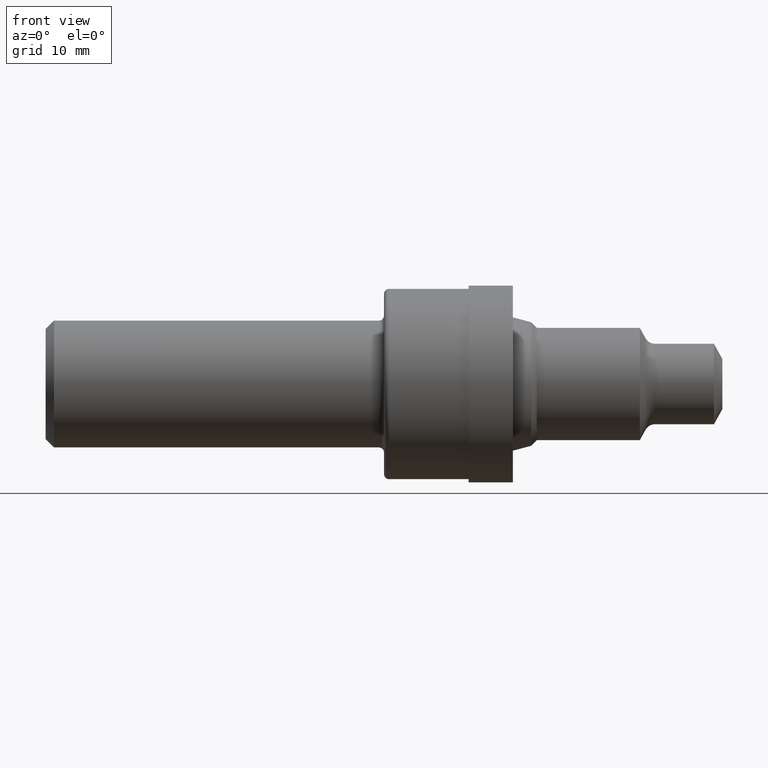
[diagram: clean part render]
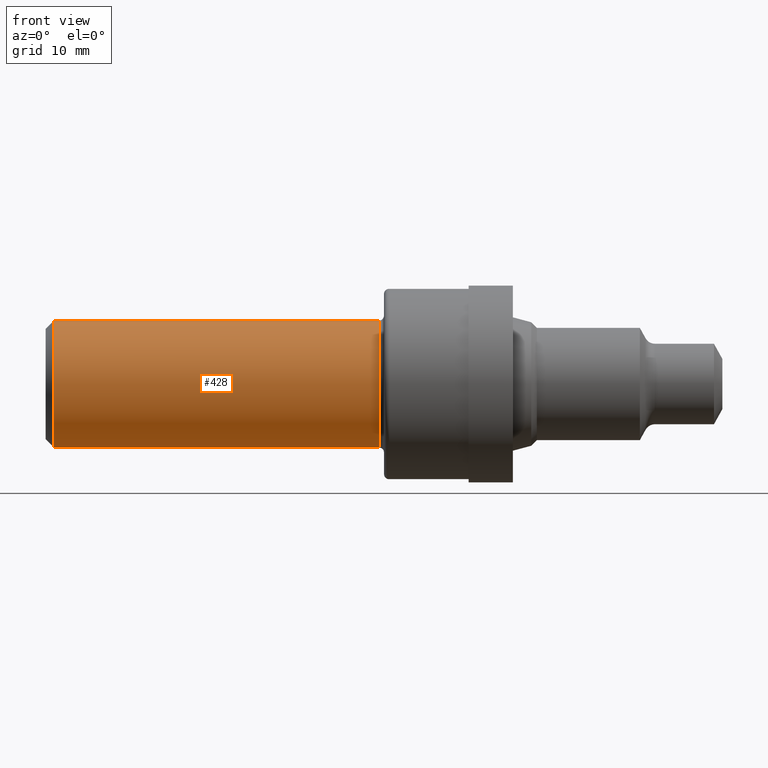
[diagram: same view with one face highlighted and labeled with its STEP entity id]
A machine part, front view. The second image highlights one B-rep face of the part: STEP entity #428.
In plain terms, the highlighted cylindrical surface (partial cylindrical patch) has radius 9.5212 mm, axis along (-1, -0, -0).
Its self-contained STEP definition (entity closure, byte-faithful):
#5 = ORIENTED_EDGE ( 'NONE', *, *, #350, .T. ) ;
#31 = EDGE_CURVE ( 'NONE', #664, #215, #213, .T. ) ;
#44 = DIRECTION ( 'NONE',  ( -1.000000000000000000, -0.0000000000000000000, -0.0000000000000000000 ) ) ;
#122 = LINE ( 'NONE', #300, #596 ) ;
#127 = AXIS2_PLACEMENT_3D ( 'NONE', #835, #591, #451 ) ;
#135 = VERTEX_POINT ( 'NONE', #603 ) ;
#165 = DIRECTION ( 'NONE',  ( -1.000000000000000000, -0.0000000000000000000, -0.0000000000000000000 ) ) ;
#184 = EDGE_LOOP ( 'NONE', ( #324, #5, #262, #732 ) ) ;
#196 = DIRECTION ( 'NONE',  ( 0.0000000000000000000, 0.0000000000000000000, 1.000000000000000000 ) ) ;
#213 = LINE ( 'NONE', #577, #463 ) ;
#215 = VERTEX_POINT ( 'NONE', #360 ) ;
#238 = EDGE_CURVE ( 'NONE', #135, #765, #122, .T. ) ;
#246 = CYLINDRICAL_SURFACE ( 'NONE', #127, 0.3748500000000002386 ) ;
#262 = ORIENTED_EDGE ( 'NONE', *, *, #31, .T. ) ;
#287 = CARTESIAN_POINT ( 'NONE',  ( 1.969999999999999973, 0.0000000000000000000, 0.3748500000000005161 ) ) ;
#300 = CARTESIAN_POINT ( 'NONE',  ( 0.0000000000000000000, 4.590588526603856213E-17, -0.3748500000000002386 ) ) ;
#324 = ORIENTED_EDGE ( 'NONE', *, *, #238, .F. ) ;
#345 = AXIS2_PLACEMENT_3D ( 'NONE', #811, #165, #433 ) ;
#350 = EDGE_CURVE ( 'NONE', #135, #664, #508, .T. ) ;
#360 = CARTESIAN_POINT ( 'NONE',  ( 0.05000000000000000278, 4.590588526603853748E-17, 0.3748500000000000165 ) ) ;
#387 = CARTESIAN_POINT ( 'NONE',  ( 1.969999999999999973, 0.0000000000000000000, 0.0000000000000000000 ) ) ;
#428 = ADVANCED_FACE ( 'NONE', ( #573 ), #246, .T. ) ;
#433 = DIRECTION ( 'NONE',  ( 0.0000000000000000000, 0.0000000000000000000, 1.000000000000000000 ) ) ;
#451 = DIRECTION ( 'NONE',  ( 0.0000000000000000000, 0.0000000000000000000, 1.000000000000000000 ) ) ;
#463 = VECTOR ( 'NONE', #583, 39.37007874015748143 ) ;
#480 = CIRCLE ( 'NONE', #345, 0.3748500000000000165 ) ;
#508 = CIRCLE ( 'NONE', #805, 0.3748500000000005161 ) ;
#573 = FACE_OUTER_BOUND ( 'NONE', #184, .T. ) ;
#577 = CARTESIAN_POINT ( 'NONE',  ( 0.0000000000000000000, 0.0000000000000000000, 0.3748500000000002386 ) ) ;
#583 = DIRECTION ( 'NONE',  ( -1.000000000000000000, -0.0000000000000000000, -0.0000000000000000000 ) ) ;
#591 = DIRECTION ( 'NONE',  ( -1.000000000000000000, -0.0000000000000000000, -0.0000000000000000000 ) ) ;
#596 = VECTOR ( 'NONE', #44, 39.37007874015748143 ) ;
#603 = CARTESIAN_POINT ( 'NONE',  ( 1.969999999999999973, 4.590588526603859294E-17, -0.3748500000000005161 ) ) ;
#611 = CARTESIAN_POINT ( 'NONE',  ( 0.05000000000000000278, 0.0000000000000000000, -0.3748500000000000165 ) ) ;
#656 = DIRECTION ( 'NONE',  ( -1.000000000000000000, -0.0000000000000000000, -0.0000000000000000000 ) ) ;
#664 = VERTEX_POINT ( 'NONE', #287 ) ;
#697 = EDGE_CURVE ( 'NONE', #765, #215, #480, .T. ) ;
#732 = ORIENTED_EDGE ( 'NONE', *, *, #697, .F. ) ;
#765 = VERTEX_POINT ( 'NONE', #611 ) ;
#805 = AXIS2_PLACEMENT_3D ( 'NONE', #387, #656, #196 ) ;
#811 = CARTESIAN_POINT ( 'NONE',  ( 0.05000000000000000278, 0.0000000000000000000, 0.0000000000000000000 ) ) ;
#835 = CARTESIAN_POINT ( 'NONE',  ( 0.0000000000000000000, 0.0000000000000000000, 0.0000000000000000000 ) ) ;